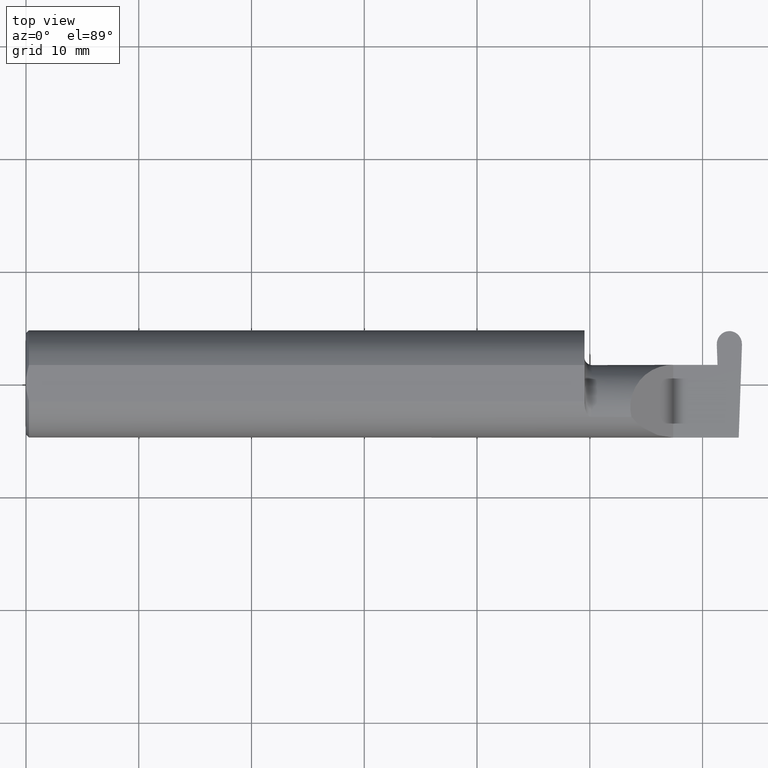
[diagram: clean part render]
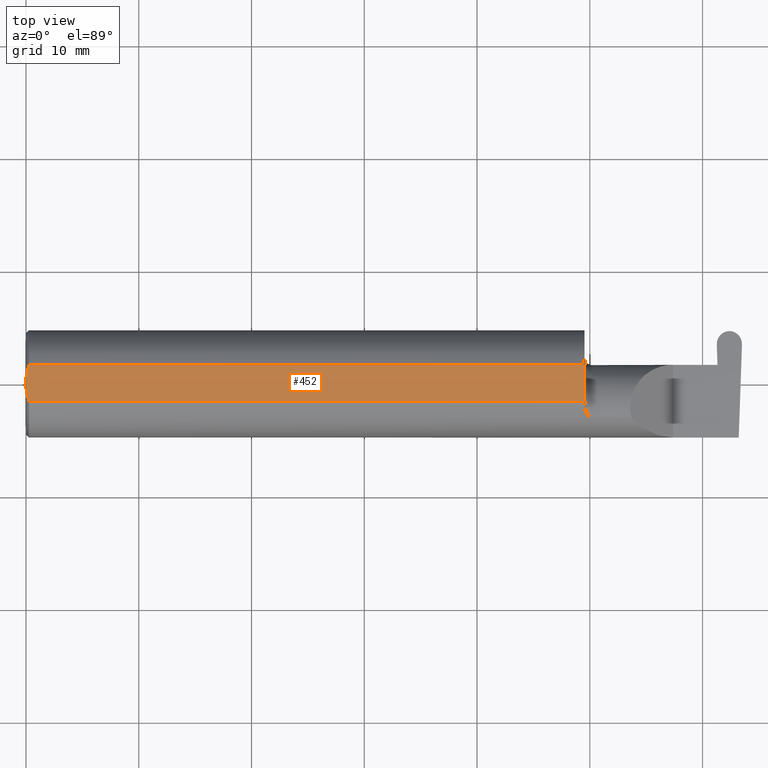
[diagram: same view with one face highlighted and labeled with its STEP entity id]
A machine part, top view. The second image highlights one B-rep face of the part: STEP entity #452.
In plain terms, the highlighted planar face has unit normal (0, 0, 1).
Its self-contained STEP definition (entity closure, byte-faithful):
#4 = CARTESIAN_POINT ( 'NONE',  ( 0.001616639753276218755, 0.03405189565400963680, 0.1763499999999999235 ) ) ;
#18 = VERTEX_POINT ( 'NONE', #106 ) ;
#56 = VECTOR ( 'NONE', #332, 39.37007874015748143 ) ;
#58 = LINE ( 'NONE', #210, #56 ) ;
#69 = EDGE_CURVE ( 'NONE', #248, #405, #433, .T. ) ;
#71 = PLANE ( 'NONE',  #176 ) ;
#76 = VERTEX_POINT ( 'NONE', #269 ) ;
#88 = EDGE_CURVE ( 'NONE', #18, #490, #632, .T. ) ;
#92 = DIRECTION ( 'NONE',  ( -3.697236809793670161E-17, 1.000000000000000000, 0.000000000000000000 ) ) ;
#96 = CARTESIAN_POINT ( 'NONE',  ( 0.000000000000000000, 0.06325108694718235836, 0.1763499999999999235 ) ) ;
#100 = VECTOR ( 'NONE', #92, 39.37007874015748143 ) ;
#106 = CARTESIAN_POINT ( 'NONE',  ( 0.000000000000000000, 0.01880691362239451242, 0.1763499999999999235 ) ) ;
#131 = VECTOR ( 'NONE', #531, 39.37007874015748143 ) ;
#134 = ORIENTED_EDGE ( 'NONE', *, *, #580, .T. ) ;
#140 = CARTESIAN_POINT ( 'NONE',  ( 0.000000000000000000, -0.06325108694718235836, 0.1763499999999999235 ) ) ;
#144 = CARTESIAN_POINT ( 'NONE',  ( 0.000000000000000000, -0.01880691362239451242, 0.1763499999999999235 ) ) ;
#176 = AXIS2_PLACEMENT_3D ( 'NONE', #293, #229, #446 ) ;
#201 = CARTESIAN_POINT ( 'NONE',  ( 0.005151108632379595466, -0.04888864921576189376, 0.1763499999999999235 ) ) ;
#210 = CARTESIAN_POINT ( 'NONE',  ( 0.000000000000000000, 0.1873499999999998500, 0.1763499999999999235 ) ) ;
#229 = DIRECTION ( 'NONE',  ( 0.000000000000000000, 0.000000000000000000, 1.000000000000000000 ) ) ;
#248 = VERTEX_POINT ( 'NONE', #259 ) ;
#250 = CARTESIAN_POINT ( 'NONE',  ( 0.009999999999999346217, 0.06325108694718235836, 0.1763499999999999235 ) ) ;
#254 = ORIENTED_EDGE ( 'NONE', *, *, #561, .T. ) ;
#259 = CARTESIAN_POINT ( 'NONE',  ( 0.009999999999999346217, -0.06325108694718235836, 0.1763499999999999235 ) ) ;
#268 = DIRECTION ( 'NONE',  ( -1.000000000000000000, -0.000000000000000000, -0.000000000000000000 ) ) ;
#269 = CARTESIAN_POINT ( 'NONE',  ( 1.949999999999999956, -0.06325108694718283020, 0.1763499999999999235 ) ) ;
#290 = EDGE_CURVE ( 'NONE', #405, #18, #58, .T. ) ;
#293 = CARTESIAN_POINT ( 'NONE',  ( 2.876828993045917215, 0.1873499999999998500, 0.1763499999999999235 ) ) ;
#304 = FACE_OUTER_BOUND ( 'NONE', #647, .T. ) ;
#332 = DIRECTION ( 'NONE',  ( -0.000000000000000000, 1.000000000000000000, -0.000000000000000000 ) ) ;
#342 = CARTESIAN_POINT ( 'NONE',  ( 1.949999999999999956, 0.06325108694718235836, 0.1763499999999999235 ) ) ;
#343 = ORIENTED_EDGE ( 'NONE', *, *, #88, .F. ) ;
#366 = CARTESIAN_POINT ( 'NONE',  ( 1.949999999999999956, 0.1873499999999998222, 0.1763499999999999235 ) ) ;
#389 = ORIENTED_EDGE ( 'NONE', *, *, #290, .F. ) ;
#405 = VERTEX_POINT ( 'NONE', #673 ) ;
#416 = LINE ( 'NONE', #366, #100 ) ;
#433 = B_SPLINE_CURVE_WITH_KNOTS ( 'NONE', 3,
 ( #489, #201, #644, #144 ),
 .UNSPECIFIED., .F., .F.,
 ( 4, 4 ),
 ( 0.009771445421851449736, 0.01092787937989102981 ),
 .UNSPECIFIED. ) ;
#446 = DIRECTION ( 'NONE',  ( 1.000000000000000000, 0.000000000000000000, -0.000000000000000000 ) ) ;
#452 = ADVANCED_FACE ( 'NONE', ( #304 ), #71, .T. ) ;
#476 = EDGE_CURVE ( 'NONE', #248, #76, #637, .T. ) ;
#489 = CARTESIAN_POINT ( 'NONE',  ( 0.009999999999999346217, -0.06325108694718235836, 0.1763499999999999235 ) ) ;
#490 = VERTEX_POINT ( 'NONE', #250 ) ;
#497 = CARTESIAN_POINT ( 'NONE',  ( 0.005155213631852355663, 0.04890080824240217866, 0.1763499999999999235 ) ) ;
#531 = DIRECTION ( 'NONE',  ( 1.000000000000000000, 0.000000000000000000, 0.000000000000000000 ) ) ;
#561 = EDGE_CURVE ( 'NONE', #682, #490, #594, .T. ) ;
#580 = EDGE_CURVE ( 'NONE', #76, #682, #416, .T. ) ;
#584 = ORIENTED_EDGE ( 'NONE', *, *, #69, .F. ) ;
#594 = LINE ( 'NONE', #96, #630 ) ;
#617 = ORIENTED_EDGE ( 'NONE', *, *, #476, .T. ) ;
#630 = VECTOR ( 'NONE', #268, 39.37007874015748143 ) ;
#632 = B_SPLINE_CURVE_WITH_KNOTS ( 'NONE', 3,
 ( #670, #4, #497, #675 ),
 .UNSPECIFIED., .F., .F.,
 ( 4, 4 ),
 ( 0.01188664626022267051, 0.01304646959483758001 ),
 .UNSPECIFIED. ) ;
#637 = LINE ( 'NONE', #140, #131 ) ;
#644 = CARTESIAN_POINT ( 'NONE',  ( 0.001595548104417217512, -0.03385300050298979679, 0.1763499999999999235 ) ) ;
#647 = EDGE_LOOP ( 'NONE', ( #617, #134, #254, #343, #389, #584 ) ) ;
#670 = CARTESIAN_POINT ( 'NONE',  ( 0.000000000000000000, 0.01880691362239451242, 0.1763499999999999235 ) ) ;
#673 = CARTESIAN_POINT ( 'NONE',  ( 0.000000000000000000, -0.01880691362239451242, 0.1763499999999999235 ) ) ;
#675 = CARTESIAN_POINT ( 'NONE',  ( 0.009999999999999346217, 0.06325108694718235836, 0.1763499999999999235 ) ) ;
#682 = VERTEX_POINT ( 'NONE', #342 ) ;